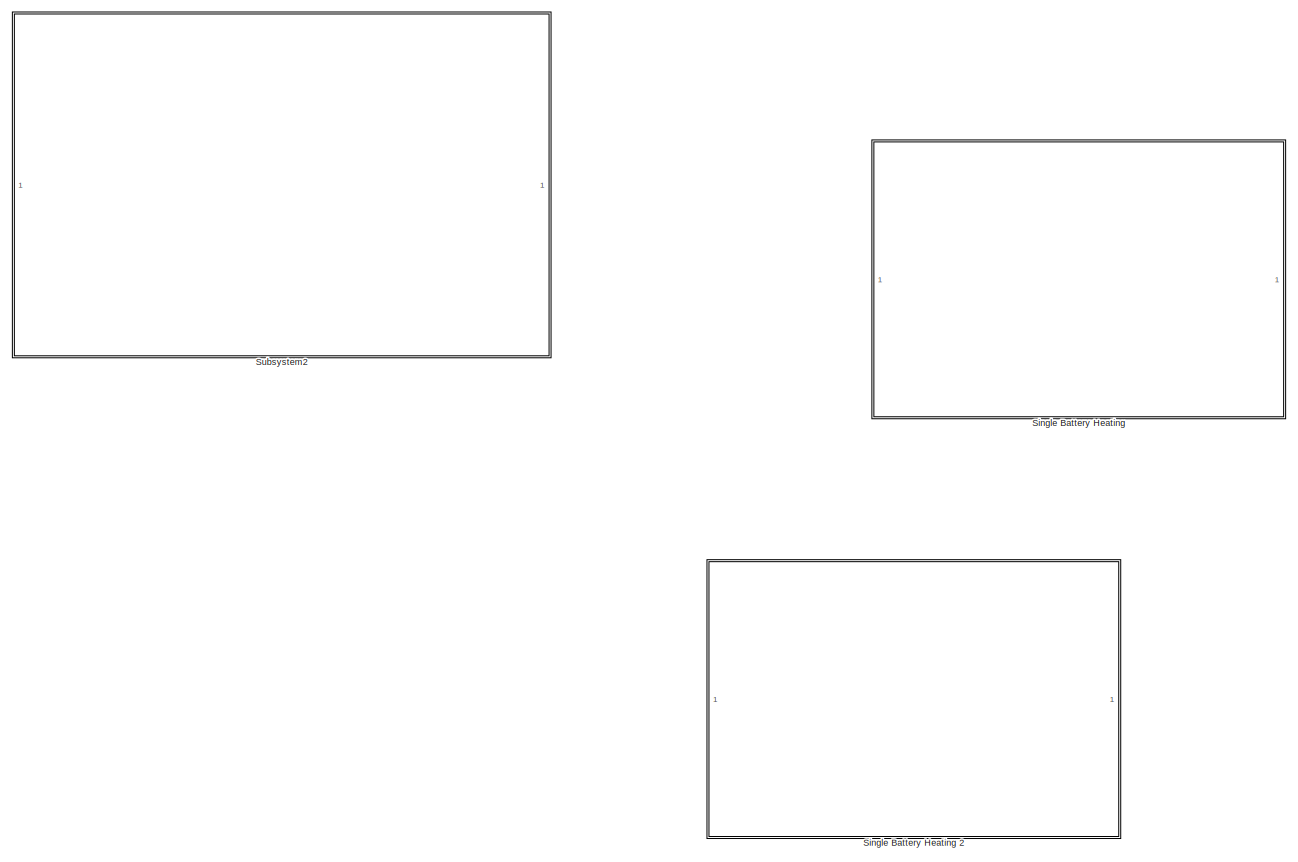
[diagram: root canvas - part 1/2, left side, full height]
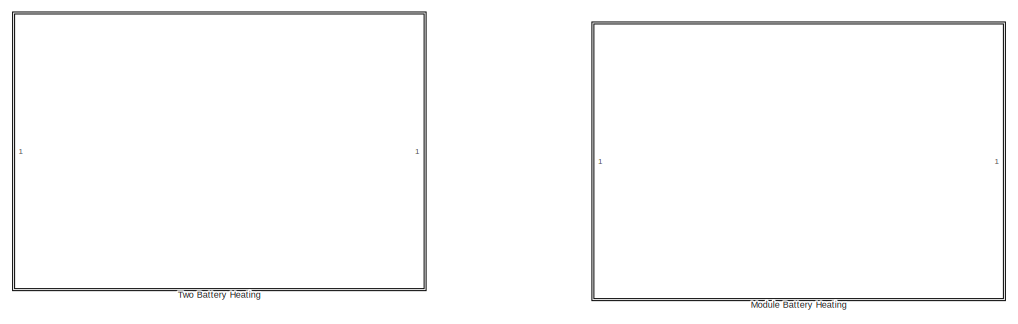
[diagram: root canvas - part 2/2, middle right region]
MODEL slx_ec2c354587e4
KIND model
CONFIG AbsTol = auto
CONFIG EnableMultiTasking = off
CONFIG FixedStep = auto
CONFIG MaxStep = auto
CONFIG MinStep = auto
CONFIG RelTol = 1e-3
CONFIG SampleTimeConstraint = Unconstrained
CONFIG SolverName = VariableStepAuto
CONFIG StartTime = 0.0
CONFIG StopTime = 60
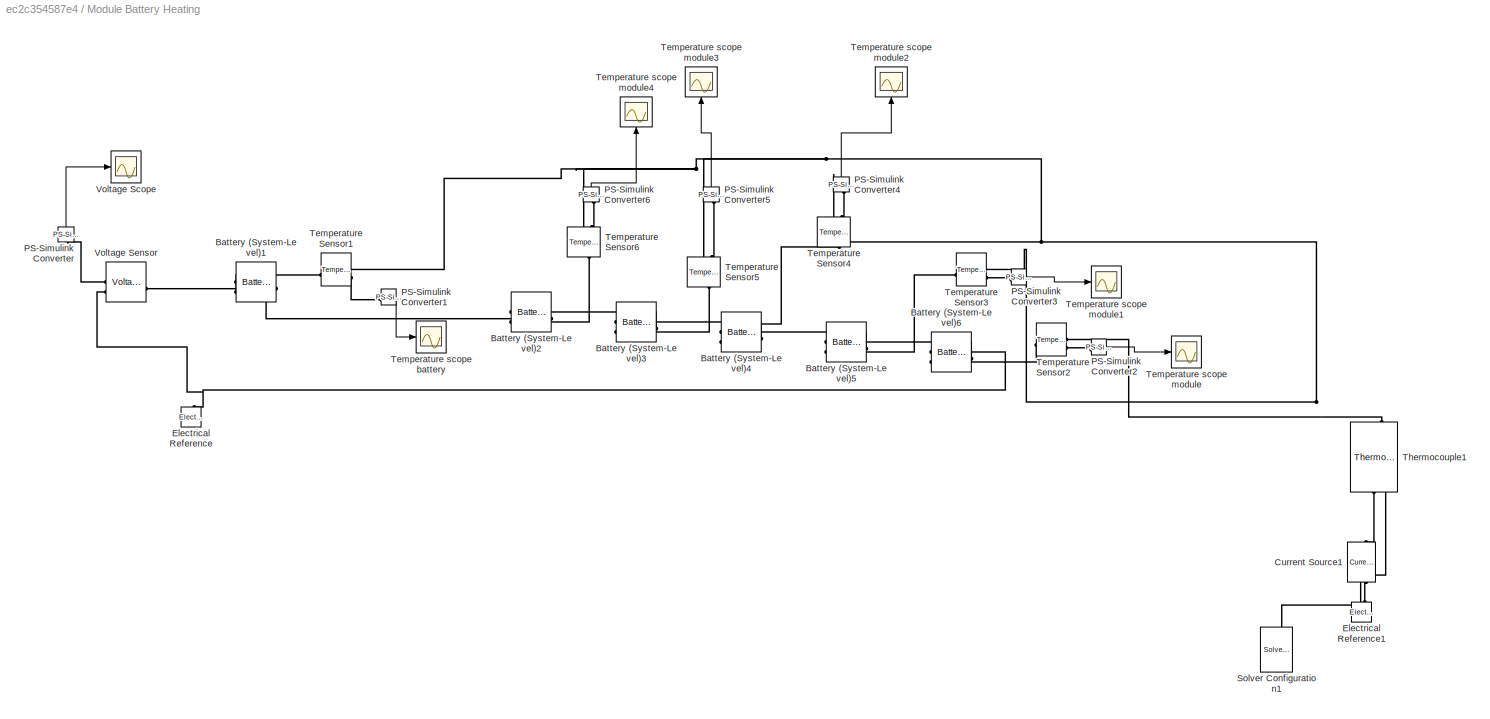
BLOCK [SubSystem] Module Battery Heating 
BLOCK [Reference] Module Battery Heating /Battery (System-Level)1  REF=sdl_lib/Sources/Battery
(System-Level)
  NameLocation = top
  SourceBlock = sdl_lib/Sources/Battery\n(System-Level)
  SourceType = Battery\n(System-Level)
BLOCK [Reference] Module Battery Heating /Battery (System-Level)2  REF=sdl_lib/Sources/Battery
(System-Level)
  NameLocation = top
  SourceBlock = sdl_lib/Sources/Battery\n(System-Level)
  SourceType = Battery\n(System-Level)
BLOCK [Reference] Module Battery Heating /Battery (System-Level)3  REF=sdl_lib/Sources/Battery
(System-Level)
  NameLocation = top
  SourceBlock = sdl_lib/Sources/Battery\n(System-Level)
  SourceType = Battery\n(System-Level)
BLOCK [Reference] Module Battery Heating /Battery (System-Level)4  REF=sdl_lib/Sources/Battery
(System-Level)
  NameLocation = top
  SourceBlock = sdl_lib/Sources/Battery\n(System-Level)
  SourceType = Battery\n(System-Level)
BLOCK [Reference] Module Battery Heating /Battery (System-Level)5  REF=sdl_lib/Sources/Battery
(System-Level)
  NameLocation = top
  SourceBlock = sdl_lib/Sources/Battery\n(System-Level)
  SourceType = Battery\n(System-Level)
BLOCK [Reference] Module Battery Heating /Battery (System-Level)6  REF=sdl_lib/Sources/Battery
(System-Level)
  NameLocation = top
  SourceBlock = sdl_lib/Sources/Battery\n(System-Level)
  SourceType = Battery\n(System-Level)
BLOCK [Reference] Module Battery Heating /Current Source1  REF=ee_lib/Sources/Current Source
  NameLocation = right
  SourceBlock = ee_lib/Sources/Current Source
  SourceType = Current Source
BLOCK [Reference] Module Battery Heating /Electrical Reference  REF=fl_lib/Electrical/Electrical Elements/Electrical Reference
  NameLocation = right
  SourceBlock = fl_lib/Electrical/Electrical Elements/Electrical Reference
  SourceType = Electrical Reference
BLOCK [Reference] Module Battery Heating /Electrical Reference1  REF=fl_lib/Electrical/Electrical Elements/Electrical Reference
  LibrarySourceBlock = ee_lib/Connectors &\nReferences/Electrical Reference
  NameLocation = right
  SourceBlock = fl_lib/Electrical/Electrical Elements/Electrical Reference
  SourceType = Electrical Reference
BLOCK [Reference] Module Battery Heating /PS-Simulink Converter  REF=nesl_utility/PS-Simulink
Converter
  NameLocation = right
  SourceBlock = nesl_utility/PS-Simulink\nConverter
  SourceType = PS-Simulink\nConverter
BLOCK [Reference] Module Battery Heating /PS-Simulink Converter1  REF=nesl_utility/PS-Simulink
Converter
  SourceBlock = nesl_utility/PS-Simulink\nConverter
  SourceType = PS-Simulink\nConverter
BLOCK [Reference] Module Battery Heating /PS-Simulink Converter2  REF=nesl_utility/PS-Simulink
Converter
  SourceBlock = nesl_utility/PS-Simulink\nConverter
  SourceType = PS-Simulink\nConverter
BLOCK [Reference] Module Battery Heating /PS-Simulink Converter3  REF=nesl_utility/PS-Simulink
Converter
  SourceBlock = nesl_utility/PS-Simulink\nConverter
  SourceType = PS-Simulink\nConverter
BLOCK [Reference] Module Battery Heating /PS-Simulink Converter4  REF=nesl_utility/PS-Simulink
Converter
  NameLocation = right
  SourceBlock = nesl_utility/PS-Simulink\nConverter
  SourceType = PS-Simulink\nConverter
BLOCK [Reference] Module Battery Heating /PS-Simulink Converter5  REF=nesl_utility/PS-Simulink
Converter
  NameLocation = right
  SourceBlock = nesl_utility/PS-Simulink\nConverter
  SourceType = PS-Simulink\nConverter
BLOCK [Reference] Module Battery Heating /PS-Simulink Converter6  REF=nesl_utility/PS-Simulink
Converter
  NameLocation = right
  SourceBlock = nesl_utility/PS-Simulink\nConverter
  SourceType = PS-Simulink\nConverter
BLOCK [Reference] Module Battery Heating /Solver Configuration1  REF=nesl_utility/Solver
Configuration
  NameLocation = right
  SourceBlock = nesl_utility/Solver\nConfiguration
  SourceType = Solver\nConfiguration
BLOCK [Reference] Module Battery Heating /Temperature Sensor1  REF=fl_lib/Thermal/Thermal Sensors/Temperature Sensor
  SourceBlock = fl_lib/Thermal/Thermal Sensors/Temperature Sensor
  SourceType = Temperature Sensor
BLOCK [Reference] Module Battery Heating /Temperature Sensor2  REF=fl_lib/Thermal/Thermal Sensors/Temperature Sensor
  SourceBlock = fl_lib/Thermal/Thermal Sensors/Temperature Sensor
  SourceType = Temperature Sensor
BLOCK [Reference] Module Battery Heating /Temperature Sensor3  REF=fl_lib/Thermal/Thermal Sensors/Temperature Sensor
  SourceBlock = fl_lib/Thermal/Thermal Sensors/Temperature Sensor
  SourceType = Temperature Sensor
BLOCK [Reference] Module Battery Heating /Temperature Sensor4  REF=fl_lib/Thermal/Thermal Sensors/Temperature Sensor
  NameLocation = right
  SourceBlock = fl_lib/Thermal/Thermal Sensors/Temperature Sensor
  SourceType = Temperature Sensor
BLOCK [Reference] Module Battery Heating /Temperature Sensor5  REF=fl_lib/Thermal/Thermal Sensors/Temperature Sensor
  NameLocation = right
  SourceBlock = fl_lib/Thermal/Thermal Sensors/Temperature Sensor
  SourceType = Temperature Sensor
BLOCK [Reference] Module Battery Heating /Temperature Sensor6  REF=fl_lib/Thermal/Thermal Sensors/Temperature Sensor
  NameLocation = right
  SourceBlock = fl_lib/Thermal/Thermal Sensors/Temperature Sensor
  SourceType = Temperature Sensor
BLOCK [Scope] Module Battery Heating /Temperature scope battery
  Floating = off
  NumInputPorts = 1
  ScopeSpecificationString = Simulink.scopes.TimeScopeBlockCfg('CurrentConfiguration', extmgr.ConfigurationSet(extmgr.Configuration('Core','General UI',true),extmgr.Configuration('Core','Source UI',true),extmgr.Configuration('Sources','WiredSimulink',true,'DataLoggingVariableName','ScopeData1'),extmgr.Configuration('Visuals','Time Domain',true,'SerializedDisplays',{struct('MinYLimReal','540.00000','MaxYLimReal','740.00000','Y...<+1423ch>
BLOCK [Scope] Module Battery Heating /Temperature scope module
  Floating = off
  NumInputPorts = 1
  ScopeSpecificationString = Simulink.scopes.TimeScopeBlockCfg('CurrentConfiguration', extmgr.ConfigurationSet(extmgr.Configuration('Core','General UI',true),extmgr.Configuration('Core','Source UI',true),extmgr.Configuration('Sources','WiredSimulink',true,'DataLoggingVariableName','ScopeData2'),extmgr.Configuration('Visuals','Time Domain',true,'SerializedDisplays',{struct('MinYLimReal','540.00000','MaxYLimReal','740.00000','Y...<+1423ch>
BLOCK [Scope] Module Battery Heating /Temperature scope module1
  Floating = off
  NumInputPorts = 1
  ScopeSpecificationString = Simulink.scopes.TimeScopeBlockCfg('CurrentConfiguration', extmgr.ConfigurationSet(extmgr.Configuration('Core','General UI',true),extmgr.Configuration('Core','Source UI',true),extmgr.Configuration('Sources','WiredSimulink',true,'DataLoggingVariableName','ScopeData3'),extmgr.Configuration('Visuals','Time Domain',true,'SerializedDisplays',{struct('MinYLimReal','540.00000','MaxYLimReal','740.00000','Y...<+1423ch>
BLOCK [Scope] Module Battery Heating /Temperature scope module2
  Floating = off
  NameLocation = right
  NumInputPorts = 1
  ScopeSpecificationString = Simulink.scopes.TimeScopeBlockCfg('CurrentConfiguration', extmgr.ConfigurationSet(extmgr.Configuration('Core','General UI',true),extmgr.Configuration('Core','Source UI',true),extmgr.Configuration('Sources','WiredSimulink',true,'DataLoggingVariableName','ScopeData4'),extmgr.Configuration('Visuals','Time Domain',true,'SerializedDisplays',{struct('MinYLimReal','540.00000','MaxYLimReal','740.00000','Y...<+1423ch>
BLOCK [Scope] Module Battery Heating /Temperature scope module3
  Floating = off
  NameLocation = right
  NumInputPorts = 1
  ScopeSpecificationString = Simulink.scopes.TimeScopeBlockCfg('CurrentConfiguration', extmgr.ConfigurationSet(extmgr.Configuration('Core','General UI',true),extmgr.Configuration('Core','Source UI',true),extmgr.Configuration('Sources','WiredSimulink',true,'DataLoggingVariableName','ScopeData5'),extmgr.Configuration('Visuals','Time Domain',true,'SerializedDisplays',{struct('MinYLimReal','540.00000','MaxYLimReal','740.00000','Y...<+1423ch>
BLOCK [Scope] Module Battery Heating /Temperature scope module4
  Floating = off
  NameLocation = left
  NumInputPorts = 1
  ScopeSpecificationString = Simulink.scopes.TimeScopeBlockCfg('CurrentConfiguration', extmgr.ConfigurationSet(extmgr.Configuration('Core','General UI',true),extmgr.Configuration('Core','Source UI',true),extmgr.Configuration('Sources','WiredSimulink',true,'DataLoggingVariableName','ScopeData6'),extmgr.Configuration('Visuals','Time Domain',true,'SerializedDisplays',{struct('MinYLimReal','540.00000','MaxYLimReal','740.00000','Y...<+1423ch>
BLOCK [Reference] Module Battery Heating /Thermocouple1  REF=ee_lib/Sensors &
Transducers/Thermocouple
  NameLocation = right
  SourceBlock = ee_lib/Sensors &\nTransducers/Thermocouple
  SourceType = Thermocouple
BLOCK [Scope] Module Battery Heating /Voltage Scope
  Floating = off
  NumInputPorts = 1
  ScopeSpecificationString = Simulink.scopes.TimeScopeBlockCfg('CurrentConfiguration', extmgr.ConfigurationSet(extmgr.Configuration('Core','General UI',true),extmgr.Configuration('Core','Source UI',true),extmgr.Configuration('Sources','WiredSimulink',true),extmgr.Configuration('Visuals','Time Domain',true,'SerializedDisplays',{struct('MinYLimReal','2.1','MaxYLimReal','4.1','YLabelReal','','MinYLimMag','2.1','MaxYLimMag','4.1'...<+1307ch>
BLOCK [Reference] Module Battery Heating /Voltage Sensor  REF=fl_lib/Electrical/Electrical Sensors/Voltage Sensor
  SourceBlock = fl_lib/Electrical/Electrical Sensors/Voltage Sensor
  SourceType = Voltage Sensor
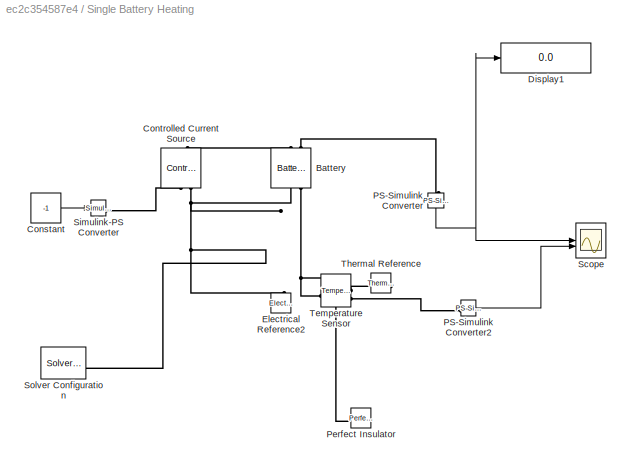
BLOCK [SubSystem] Single Battery Heating
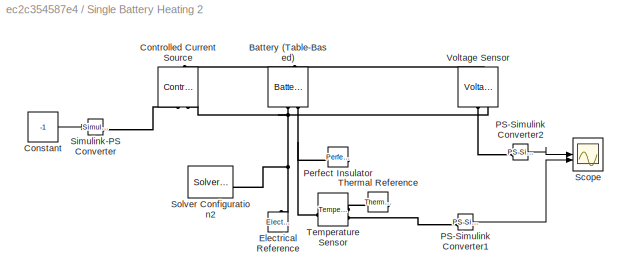
BLOCK [SubSystem] Single Battery Heating 2
BLOCK [Reference] Single Battery Heating 2/Battery (Table-Based)  REF=batteryecm_lib/Battery
(Table-Based)
  AttributesFormatString = Panasonic:NCA103450
  NameLocation = right
  SourceBlock = batteryecm_lib/Battery\n(Table-Based)
  SourceType = Battery\n(Table-Based)
  Tag = {'toolbox/physmod/battery/shared_library/m/batteryecm_lib_parts';'Battery__Table_Based_/Panasonic/NCA103450.xml'}
BLOCK [Constant] Single Battery Heating 2/Constant
  Value = -1
BLOCK [Reference] Single Battery Heating 2/Controlled Current Source  REF=fl_lib/Electrical/Electrical Sources/Controlled Current
Source
  NameLocation = left
  SourceBlock = fl_lib/Electrical/Electrical Sources/Controlled Current\nSource
  SourceType = Controlled Current\nSource
BLOCK [Reference] Single Battery Heating 2/Electrical Reference  REF=fl_lib/Electrical/Electrical Elements/Electrical Reference
  NameLocation = right
  SourceBlock = fl_lib/Electrical/Electrical Elements/Electrical Reference
  SourceType = Electrical Reference
BLOCK [Reference] Single Battery Heating 2/PS-Simulink Converter1  REF=nesl_utility/PS-Simulink
Converter
  SourceBlock = nesl_utility/PS-Simulink\nConverter
  SourceType = PS-Simulink\nConverter
BLOCK [Reference] Single Battery Heating 2/PS-Simulink Converter2  REF=nesl_utility/PS-Simulink
Converter
  SourceBlock = nesl_utility/PS-Simulink\nConverter
  SourceType = PS-Simulink\nConverter
BLOCK [Reference] Single Battery Heating 2/Perfect Insulator  REF=fl_lib/Thermal/Thermal Elements/Perfect Insulator
  NameLocation = top
  SourceBlock = fl_lib/Thermal/Thermal Elements/Perfect Insulator
  SourceType = Perfect Insulator
BLOCK [Scope] Single Battery Heating 2/Scope
  Floating = off
  NumInputPorts = 2
  ScopeSpecificationString = Simulink.scopes.TimeScopeBlockCfg('CurrentConfiguration', extmgr.ConfigurationSet(extmgr.Configuration('Core','General UI',true),extmgr.Configuration('Core','Source UI',true),extmgr.Configuration('Sources','WiredSimulink',true,'DataLoggingVariableName','ScopeData8'),extmgr.Configuration('Visuals','Time Domain',true,'SerializedDisplays',{struct('MinYLimReal','2.60531','MaxYLimReal','4.19512','YLabe...<+2000ch>
BLOCK [Reference] Single Battery Heating 2/Simulink-PS Converter  REF=nesl_utility/Simulink-PS
Converter
  SourceBlock = nesl_utility/Simulink-PS\nConverter
  SourceType = Simulink-PS\nConverter
BLOCK [Reference] Single Battery Heating 2/Solver Configuration2  REF=nesl_utility/Solver
Configuration
  SourceBlock = nesl_utility/Solver\nConfiguration
  SourceType = Solver\nConfiguration
BLOCK [Reference] Single Battery Heating 2/Temperature Sensor  REF=fl_lib/Thermal/Thermal Sensors/Temperature Sensor
  SourceBlock = fl_lib/Thermal/Thermal Sensors/Temperature Sensor
  SourceType = Temperature Sensor
BLOCK [Reference] Single Battery Heating 2/Thermal Reference  REF=fl_lib/Thermal/Thermal Elements/Thermal Reference
  NameLocation = top
  SourceBlock = fl_lib/Thermal/Thermal Elements/Thermal Reference
  SourceType = Thermal Reference
BLOCK [Reference] Single Battery Heating 2/Voltage Sensor  REF=fl_lib/Electrical/Electrical Sensors/Voltage Sensor
  NameLocation = right
  SourceBlock = fl_lib/Electrical/Electrical Sensors/Voltage Sensor
  SourceType = Voltage Sensor
BLOCK [Reference] Single Battery Heating/Battery  REF=batteryecm_lib/Battery
  NameLocation = right
  SourceBlock = batteryecm_lib/Battery
  SourceType = Battery
BLOCK [Constant] Single Battery Heating/Constant
  Value = -1
BLOCK [Reference] Single Battery Heating/Controlled Current Source  REF=fl_lib/Electrical/Electrical Sources/Controlled Current
Source
  NameLocation = left
  SourceBlock = fl_lib/Electrical/Electrical Sources/Controlled Current\nSource
  SourceType = Controlled Current\nSource
BLOCK [Display] Single Battery Heating/Display1
  Decimation = 1
BLOCK [Reference] Single Battery Heating/Electrical Reference2  REF=fl_lib/Electrical/Electrical Elements/Electrical Reference
  NameLocation = right
  SourceBlock = fl_lib/Electrical/Electrical Elements/Electrical Reference
  SourceType = Electrical Reference
BLOCK [Reference] Single Battery Heating/PS-Simulink Converter  REF=nesl_utility/PS-Simulink
Converter
  NameLocation = left
  SourceBlock = nesl_utility/PS-Simulink\nConverter
  SourceType = PS-Simulink\nConverter
BLOCK [Reference] Single Battery Heating/PS-Simulink Converter2  REF=nesl_utility/PS-Simulink
Converter
  SourceBlock = nesl_utility/PS-Simulink\nConverter
  SourceType = PS-Simulink\nConverter
BLOCK [Reference] Single Battery Heating/Perfect Insulator  REF=fl_lib/Thermal/Thermal Elements/Perfect Insulator
  NameLocation = top
  SourceBlock = fl_lib/Thermal/Thermal Elements/Perfect Insulator
  SourceType = Perfect Insulator
BLOCK [Scope] Single Battery Heating/Scope
  Floating = off
  NumInputPorts = 2
  ScopeSpecificationString = Simulink.scopes.TimeScopeBlockCfg('CurrentConfiguration', extmgr.ConfigurationSet(extmgr.Configuration('Core','General UI',true),extmgr.Configuration('Core','Source UI',true),extmgr.Configuration('Sources','WiredSimulink',true,'DataLoggingVariableName','ScopeData9'),extmgr.Configuration('Visuals','Time Domain',true,'SerializedDisplays',{struct('MinYLimReal','80000.00000','MaxYLimReal','280000.0000...<+2041ch>
BLOCK [Reference] Single Battery Heating/Simulink-PS Converter  REF=nesl_utility/Simulink-PS
Converter
  SourceBlock = nesl_utility/Simulink-PS\nConverter
  SourceType = Simulink-PS\nConverter
BLOCK [Reference] Single Battery Heating/Solver Configuration  REF=nesl_utility/Solver
Configuration
  SourceBlock = nesl_utility/Solver\nConfiguration
  SourceType = Solver\nConfiguration
BLOCK [Reference] Single Battery Heating/Temperature Sensor  REF=fl_lib/Thermal/Thermal Sensors/Temperature Sensor
  SourceBlock = fl_lib/Thermal/Thermal Sensors/Temperature Sensor
  SourceType = Temperature Sensor
BLOCK [Reference] Single Battery Heating/Thermal Reference  REF=fl_lib/Thermal/Thermal Elements/Thermal Reference
  NameLocation = top
  SourceBlock = fl_lib/Thermal/Thermal Elements/Thermal Reference
  SourceType = Thermal Reference
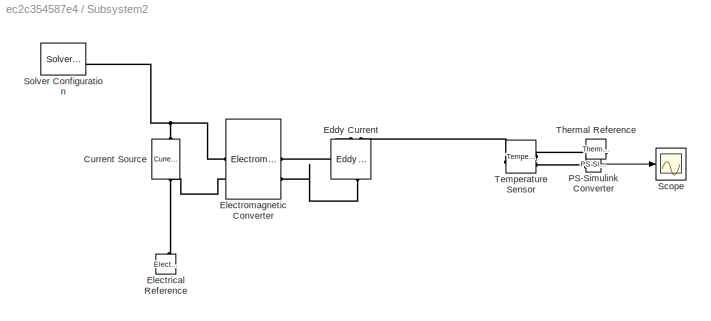
BLOCK [SubSystem] Subsystem2
BLOCK [Reference] Subsystem2/Current Source  REF=ee_lib/Sources/Current Source
  NameLocation = left
  SourceBlock = ee_lib/Sources/Current Source
  SourceType = Current Source
BLOCK [Reference] Subsystem2/Eddy Current  REF=ee_lib/Passive/Eddy Current
  NameLocation = left
  SourceBlock = ee_lib/Passive/Eddy Current
  SourceType = Eddy Current
BLOCK [Reference] Subsystem2/Electrical Reference  REF=fl_lib/Electrical/Electrical Elements/Electrical Reference
  LibrarySourceBlock = ee_lib/Connectors &\nReferences/Electrical Reference
  NameLocation = right
  SourceBlock = fl_lib/Electrical/Electrical Elements/Electrical Reference
  SourceType = Electrical Reference
BLOCK [Reference] Subsystem2/Electromagnetic Converter  REF=fl_lib/Magnetic/Magnetic Elements/Electromagnetic
Converter
  SourceBlock = fl_lib/Magnetic/Magnetic Elements/Electromagnetic\nConverter
  SourceType = Electromagnetic\nConverter
BLOCK [Reference] Subsystem2/PS-Simulink Converter  REF=nesl_utility/PS-Simulink
Converter
  SourceBlock = nesl_utility/PS-Simulink\nConverter
  SourceType = PS-Simulink\nConverter
BLOCK [Scope] Subsystem2/Scope
  Floating = off
  NumInputPorts = 1
  ScopeSpecificationString = Simulink.scopes.TimeScopeBlockCfg('CurrentConfiguration', extmgr.ConfigurationSet(extmgr.Configuration('Core','General UI',true),extmgr.Configuration('Core','Source UI',true),extmgr.Configuration('Sources','WiredSimulink',true,'DataLoggingVariableName','ScopeData1'),extmgr.Configuration('Visuals','Time Domain',true,'SerializedDisplays',{struct('MinYLimReal','193.15','MaxYLimReal','393.15','YLabelR...<+1370ch>
BLOCK [Reference] Subsystem2/Solver Configuration  REF=nesl_utility/Solver
Configuration
  NameLocation = top
  SourceBlock = nesl_utility/Solver\nConfiguration
  SourceType = Solver\nConfiguration
BLOCK [Reference] Subsystem2/Temperature Sensor  REF=fl_lib/Thermal/Thermal Sensors/Temperature Sensor
  SourceBlock = fl_lib/Thermal/Thermal Sensors/Temperature Sensor
  SourceType = Temperature Sensor
BLOCK [Reference] Subsystem2/Thermal Reference  REF=fl_lib/Thermal/Thermal Elements/Thermal Reference
  NameLocation = top
  SourceBlock = fl_lib/Thermal/Thermal Elements/Thermal Reference
  SourceType = Thermal Reference
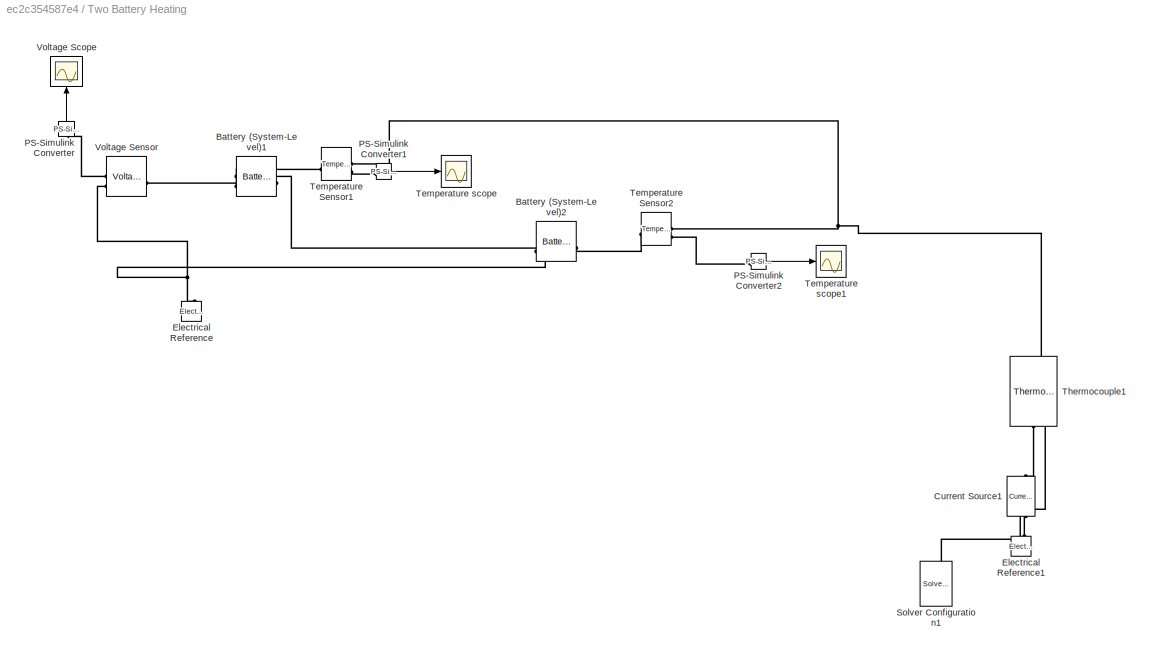
BLOCK [SubSystem] Two Battery Heating
BLOCK [Reference] Two Battery Heating/Battery (System-Level)1  REF=sdl_lib/Sources/Battery
(System-Level)
  NameLocation = top
  SourceBlock = sdl_lib/Sources/Battery\n(System-Level)
  SourceType = Battery\n(System-Level)
BLOCK [Reference] Two Battery Heating/Battery (System-Level)2  REF=sdl_lib/Sources/Battery
(System-Level)
  NameLocation = top
  SourceBlock = sdl_lib/Sources/Battery\n(System-Level)
  SourceType = Battery\n(System-Level)
BLOCK [Reference] Two Battery Heating/Current Source1  REF=ee_lib/Sources/Current Source
  NameLocation = right
  SourceBlock = ee_lib/Sources/Current Source
  SourceType = Current Source
BLOCK [Reference] Two Battery Heating/Electrical Reference  REF=fl_lib/Electrical/Electrical Elements/Electrical Reference
  NameLocation = right
  SourceBlock = fl_lib/Electrical/Electrical Elements/Electrical Reference
  SourceType = Electrical Reference
BLOCK [Reference] Two Battery Heating/Electrical Reference1  REF=fl_lib/Electrical/Electrical Elements/Electrical Reference
  LibrarySourceBlock = ee_lib/Connectors &\nReferences/Electrical Reference
  NameLocation = right
  SourceBlock = fl_lib/Electrical/Electrical Elements/Electrical Reference
  SourceType = Electrical Reference
BLOCK [Reference] Two Battery Heating/PS-Simulink Converter  REF=nesl_utility/PS-Simulink
Converter
  NameLocation = right
  SourceBlock = nesl_utility/PS-Simulink\nConverter
  SourceType = PS-Simulink\nConverter
BLOCK [Reference] Two Battery Heating/PS-Simulink Converter1  REF=nesl_utility/PS-Simulink
Converter
  SourceBlock = nesl_utility/PS-Simulink\nConverter
  SourceType = PS-Simulink\nConverter
BLOCK [Reference] Two Battery Heating/PS-Simulink Converter2  REF=nesl_utility/PS-Simulink
Converter
  SourceBlock = nesl_utility/PS-Simulink\nConverter
  SourceType = PS-Simulink\nConverter
BLOCK [Reference] Two Battery Heating/Solver Configuration1  REF=nesl_utility/Solver
Configuration
  NameLocation = right
  SourceBlock = nesl_utility/Solver\nConfiguration
  SourceType = Solver\nConfiguration
BLOCK [Reference] Two Battery Heating/Temperature Sensor1  REF=fl_lib/Thermal/Thermal Sensors/Temperature Sensor
  SourceBlock = fl_lib/Thermal/Thermal Sensors/Temperature Sensor
  SourceType = Temperature Sensor
BLOCK [Reference] Two Battery Heating/Temperature Sensor2  REF=fl_lib/Thermal/Thermal Sensors/Temperature Sensor
  SourceBlock = fl_lib/Thermal/Thermal Sensors/Temperature Sensor
  SourceType = Temperature Sensor
BLOCK [Scope] Two Battery Heating/Temperature scope
  Floating = off
  NumInputPorts = 1
  ScopeSpecificationString = Simulink.scopes.TimeScopeBlockCfg('CurrentConfiguration', extmgr.ConfigurationSet(extmgr.Configuration('Core','General UI',true),extmgr.Configuration('Core','Source UI',true),extmgr.Configuration('Sources','WiredSimulink',true,'DataLoggingVariableName','ScopeData1'),extmgr.Configuration('Visuals','Time Domain',true,'SerializedDisplays',{struct('MinYLimReal','540.00000','MaxYLimReal','740.00000','Y...<+1423ch>
BLOCK [Scope] Two Battery Heating/Temperature scope1
  Floating = off
  NumInputPorts = 1
  ScopeSpecificationString = Simulink.scopes.TimeScopeBlockCfg('CurrentConfiguration', extmgr.ConfigurationSet(extmgr.Configuration('Core','General UI',true),extmgr.Configuration('Core','Source UI',true),extmgr.Configuration('Sources','WiredSimulink',true,'DataLoggingVariableName','ScopeData7'),extmgr.Configuration('Visuals','Time Domain',true,'SerializedDisplays',{struct('MinYLimReal','540.00000','MaxYLimReal','740.00000','Y...<+1423ch>
BLOCK [Reference] Two Battery Heating/Thermocouple1  REF=ee_lib/Sensors &
Transducers/Thermocouple
  NameLocation = right
  SourceBlock = ee_lib/Sensors &\nTransducers/Thermocouple
  SourceType = Thermocouple
BLOCK [Scope] Two Battery Heating/Voltage Scope
  Floating = off
  NameLocation = right
  NumInputPorts = 1
  ScopeSpecificationString = Simulink.scopes.TimeScopeBlockCfg('CurrentConfiguration', extmgr.ConfigurationSet(extmgr.Configuration('Core','General UI',true),extmgr.Configuration('Core','Source UI',true),extmgr.Configuration('Sources','WiredSimulink',true),extmgr.Configuration('Visuals','Time Domain',true,'SerializedDisplays',{struct('MinYLimReal','2.1','MaxYLimReal','4.1','YLabelReal','','MinYLimMag','2.1','MaxYLimMag','4.1'...<+1307ch>
BLOCK [Reference] Two Battery Heating/Voltage Sensor  REF=fl_lib/Electrical/Electrical Sensors/Voltage Sensor
  SourceBlock = fl_lib/Electrical/Electrical Sensors/Voltage Sensor
  SourceType = Voltage Sensor
LINE Module Battery Heating /PS-Simulink Converter1:1 -> Module Battery Heating /Temperature scope battery:1
LINE Module Battery Heating /PS-Simulink Converter2:1 -> Module Battery Heating /Temperature scope module:1
LINE Module Battery Heating /PS-Simulink Converter3:1 -> Module Battery Heating /Temperature scope module1:1
LINE Module Battery Heating /PS-Simulink Converter4:1 -> Module Battery Heating /Temperature scope module2:1
LINE Module Battery Heating /PS-Simulink Converter5:1 -> Module Battery Heating /Temperature scope module3:1
LINE Module Battery Heating /PS-Simulink Converter6:1 -> Module Battery Heating /Temperature scope module4:1
LINE Module Battery Heating /PS-Simulink Converter:1 -> Module Battery Heating /Voltage Scope:1
LINE Single Battery Heating 2/Constant:1 -> Single Battery Heating 2/Simulink-PS Converter:1
LINE Single Battery Heating 2/PS-Simulink Converter1:1 -> Single Battery Heating 2/Scope:2
LINE Single Battery Heating 2/PS-Simulink Converter2:1 -> Single Battery Heating 2/Scope:1
LINE Single Battery Heating/Constant:1 -> Single Battery Heating/Simulink-PS Converter:1
LINE Single Battery Heating/PS-Simulink Converter2:1 -> Single Battery Heating/Scope:2
NET Single Battery Heating/PS-Simulink Converter:1 -> Single Battery Heating/Display1:1, Single Battery Heating/Scope:1
LINE Subsystem2/PS-Simulink Converter:1 -> Subsystem2/Scope:1
LINE Two Battery Heating/PS-Simulink Converter1:1 -> Two Battery Heating/Temperature scope:1
LINE Two Battery Heating/PS-Simulink Converter2:1 -> Two Battery Heating/Temperature scope1:1
LINE Two Battery Heating/PS-Simulink Converter:1 -> Two Battery Heating/Voltage Scope:1
PLINE Module Battery Heating /Battery (System-Level)1:LConn1 -- Module Battery Heating /Voltage Sensor:LConn1
PLINE Module Battery Heating /Battery (System-Level)1:RConn1 -- Module Battery Heating /Battery (System-Level)2:LConn1
PLINE Module Battery Heating /Battery (System-Level)1:RConn2 -- Module Battery Heating /Temperature Sensor1:LConn1
PLINE Module Battery Heating /Battery (System-Level)2:RConn1 -- Module Battery Heating /Battery (System-Level)3:LConn1
PLINE Module Battery Heating /Battery (System-Level)2:RConn2 -- Module Battery Heating /Temperature Sensor6:LConn1
PLINE Module Battery Heating /Battery (System-Level)3:RConn1 -- Module Battery Heating /Battery (System-Level)4:LConn1
PLINE Module Battery Heating /Battery (System-Level)3:RConn2 -- Module Battery Heating /Temperature Sensor5:LConn1
PLINE Module Battery Heating /Battery (System-Level)4:RConn1 -- Module Battery Heating /Battery (System-Level)5:LConn1
PLINE Module Battery Heating /Battery (System-Level)4:RConn2 -- Module Battery Heating /Temperature Sensor4:LConn1
PLINE Module Battery Heating /Battery (System-Level)5:RConn1 -- Module Battery Heating /Battery (System-Level)6:LConn1
PLINE Module Battery Heating /Battery (System-Level)5:RConn2 -- Module Battery Heating /Temperature Sensor3:LConn1
PNET net1: Module Battery Heating /Battery (System-Level)6:RConn1 -- Module Battery Heating /Electrical Reference:LConn1 -- Module Battery Heating /Voltage Sensor:RConn2
PLINE Module Battery Heating /Battery (System-Level)6:RConn2 -- Module Battery Heating /Temperature Sensor2:LConn1
PLINE Module Battery Heating /Current Source1:LConn1 -- Module Battery Heating /Thermocouple1:LConn1
PNET net2: Module Battery Heating /Current Source1:RConn1 -- Module Battery Heating /Electrical Reference1:LConn1 -- Module Battery Heating /Solver Configuration1:RConn1 -- Module Battery Heating /Thermocouple1:LConn2
PLINE Module Battery Heating /PS-Simulink Converter1:LConn1 -- Module Battery Heating /Temperature Sensor1:RConn2
PLINE Module Battery Heating /PS-Simulink Converter2:LConn1 -- Module Battery Heating /Temperature Sensor2:RConn2
PLINE Module Battery Heating /PS-Simulink Converter3:LConn1 -- Module Battery Heating /Temperature Sensor3:RConn2
PLINE Module Battery Heating /PS-Simulink Converter4:LConn1 -- Module Battery Heating /Temperature Sensor4:RConn2
PLINE Module Battery Heating /PS-Simulink Converter5:LConn1 -- Module Battery Heating /Temperature Sensor5:RConn2
PLINE Module Battery Heating /PS-Simulink Converter6:LConn1 -- Module Battery Heating /Temperature Sensor6:RConn2
PLINE Module Battery Heating /PS-Simulink Converter:LConn1 -- Module Battery Heating /Voltage Sensor:RConn1
PNET net3: Module Battery Heating /Temperature Sensor1:RConn1 -- Module Battery Heating /Temperature Sensor2:RConn1 -- Module Battery Heating /Temperature Sensor3:RConn1 -- Module Battery Heating /Temperature Sensor4:RConn1 -- Module Battery Heating /Temperature Sensor5:RConn1 -- Module Battery Heating /Temperature Sensor6:RConn1 -- Module Battery Heating /Thermocouple1:RConn1
PNET net4: Single Battery Heating 2/Battery (Table-Based):LConn1 -- Single Battery Heating 2/Controlled Current Source:LConn1 -- Single Battery Heating 2/Voltage Sensor:LConn1
PNET net5: Single Battery Heating 2/Battery (Table-Based):RConn1 -- Single Battery Heating 2/Controlled Current Source:RConn2 -- Single Battery Heating 2/Electrical Reference:LConn1 -- Single Battery Heating 2/Solver Configuration2:RConn1 -- Single Battery Heating 2/Voltage Sensor:RConn2
PNET net6: Single Battery Heating 2/Battery (Table-Based):RConn2 -- Single Battery Heating 2/Perfect Insulator:LConn1 -- Single Battery Heating 2/Temperature Sensor:LConn1
PLINE Single Battery Heating 2/Controlled Current Source:RConn1 -- Single Battery Heating 2/Simulink-PS Converter:RConn1
PLINE Single Battery Heating 2/PS-Simulink Converter1:LConn1 -- Single Battery Heating 2/Temperature Sensor:RConn2
PLINE Single Battery Heating 2/PS-Simulink Converter2:LConn1 -- Single Battery Heating 2/Voltage Sensor:RConn1
PLINE Single Battery Heating 2/Temperature Sensor:RConn1 -- Single Battery Heating 2/Thermal Reference:LConn1
PLINE Single Battery Heating/Battery:LConn1 -- Single Battery Heating/Controlled Current Source:LConn1
PLINE Single Battery Heating/Battery:LConn2 -- Single Battery Heating/PS-Simulink Converter:LConn1
PNET net7: Single Battery Heating/Battery:RConn1 -- Single Battery Heating/Controlled Current Source:RConn2 -- Single Battery Heating/Electrical Reference2:LConn1 -- Single Battery Heating/Solver Configuration:RConn1
PNET net8: Single Battery Heating/Battery:RConn2 -- Single Battery Heating/Perfect Insulator:LConn1 -- Single Battery Heating/Temperature Sensor:LConn1
PLINE Single Battery Heating/Controlled Current Source:RConn1 -- Single Battery Heating/Simulink-PS Converter:RConn1
PLINE Single Battery Heating/PS-Simulink Converter2:LConn1 -- Single Battery Heating/Temperature Sensor:RConn2
PLINE Single Battery Heating/Temperature Sensor:RConn1 -- Single Battery Heating/Thermal Reference:LConn1
PNET net9: Subsystem2/Current Source:LConn1 -- Subsystem2/Electromagnetic Converter:LConn1 -- Subsystem2/Solver Configuration:RConn1
PNET net10: Subsystem2/Current Source:RConn1 -- Subsystem2/Electrical Reference:LConn1 -- Subsystem2/Electromagnetic Converter:LConn2
PLINE Subsystem2/Eddy Current:LConn1 -- Subsystem2/Electromagnetic Converter:RConn1
PLINE Subsystem2/Eddy Current:LConn2 -- Subsystem2/Temperature Sensor:LConn1
PLINE Subsystem2/Eddy Current:RConn1 -- Subsystem2/Electromagnetic Converter:RConn2
PLINE Subsystem2/PS-Simulink Converter:LConn1 -- Subsystem2/Temperature Sensor:RConn2
PLINE Subsystem2/Temperature Sensor:RConn1 -- Subsystem2/Thermal Reference:LConn1
PLINE Two Battery Heating/Battery (System-Level)1:LConn1 -- Two Battery Heating/Voltage Sensor:LConn1
PLINE Two Battery Heating/Battery (System-Level)1:RConn1 -- Two Battery Heating/Battery (System-Level)2:LConn1
PLINE Two Battery Heating/Battery (System-Level)1:RConn2 -- Two Battery Heating/Temperature Sensor1:LConn1
PNET net11: Two Battery Heating/Battery (System-Level)2:RConn1 -- Two Battery Heating/Electrical Reference:LConn1 -- Two Battery Heating/Voltage Sensor:RConn2
PLINE Two Battery Heating/Battery (System-Level)2:RConn2 -- Two Battery Heating/Temperature Sensor2:LConn1
PLINE Two Battery Heating/Current Source1:LConn1 -- Two Battery Heating/Thermocouple1:LConn1
PNET net12: Two Battery Heating/Current Source1:RConn1 -- Two Battery Heating/Electrical Reference1:LConn1 -- Two Battery Heating/Solver Configuration1:RConn1 -- Two Battery Heating/Thermocouple1:LConn2
PLINE Two Battery Heating/PS-Simulink Converter1:LConn1 -- Two Battery Heating/Temperature Sensor1:RConn2
PLINE Two Battery Heating/PS-Simulink Converter2:LConn1 -- Two Battery Heating/Temperature Sensor2:RConn2
PLINE Two Battery Heating/PS-Simulink Converter:LConn1 -- Two Battery Heating/Voltage Sensor:RConn1
PNET net13: Two Battery Heating/Temperature Sensor1:RConn1 -- Two Battery Heating/Temperature Sensor2:RConn1 -- Two Battery Heating/Thermocouple1:RConn1
note: NET lines group one-source signal fan-out (src -> all destinations, sorted); 1:1 wires keep LINE; PNET lines group multi-terminal physical nets as a canonical sorted terminal list (undirected conserving connections); 2-terminal nets keep the pairwise PLINE form
